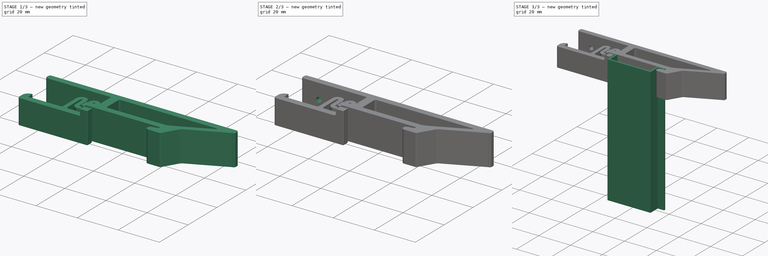
[diagram: build sequence overview — one tinted view per stage of 3, left to right]
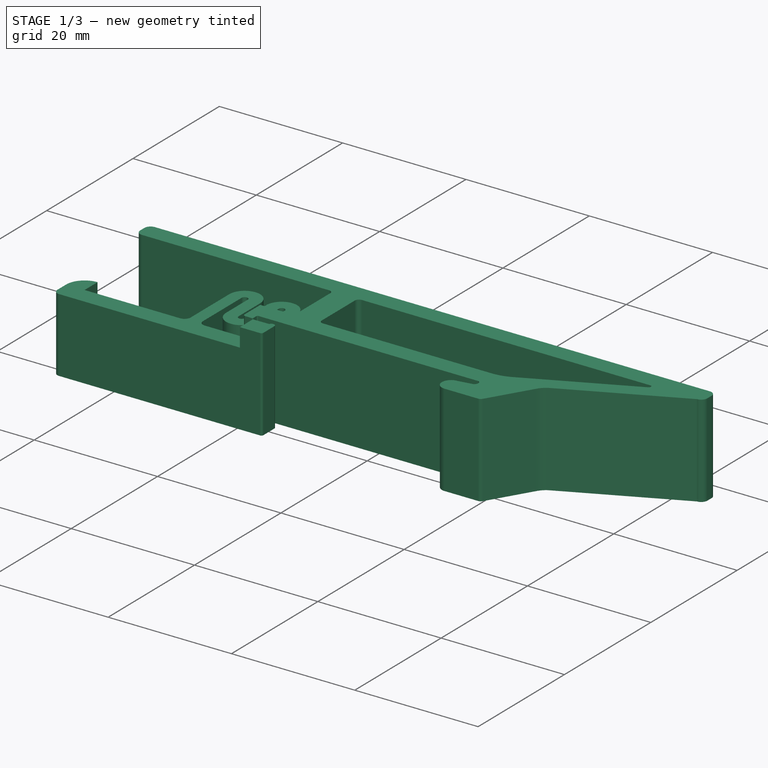
[diagram: stage 1 of 3 — iso view after this stage's code; geometry added in this stage tinted green]
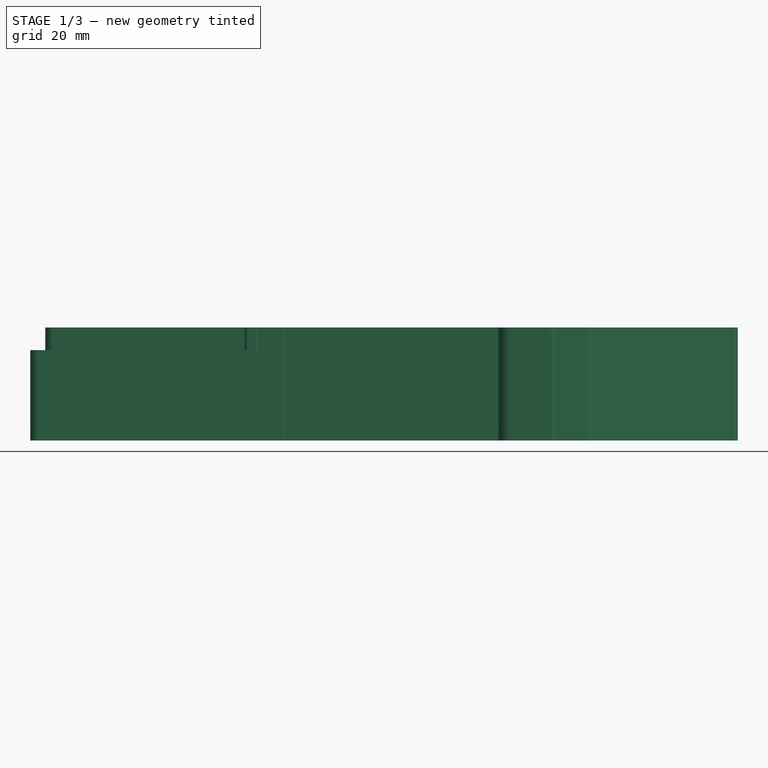
[diagram: stage 1 of 3 — front view after this stage's code; geometry added in this stage tinted green]
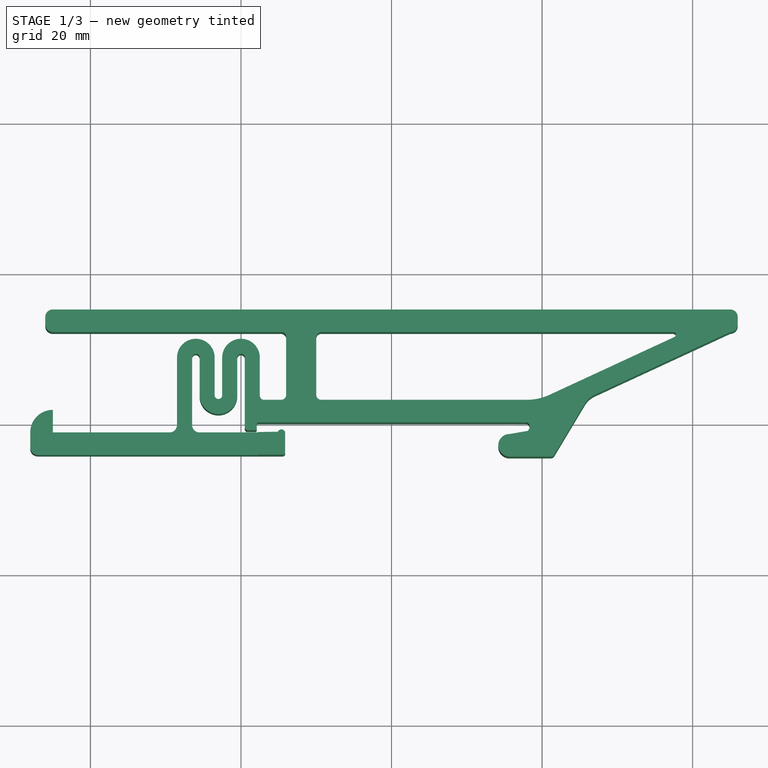
[diagram: stage 1 of 3 — top view after this stage's code; geometry added in this stage tinted green]
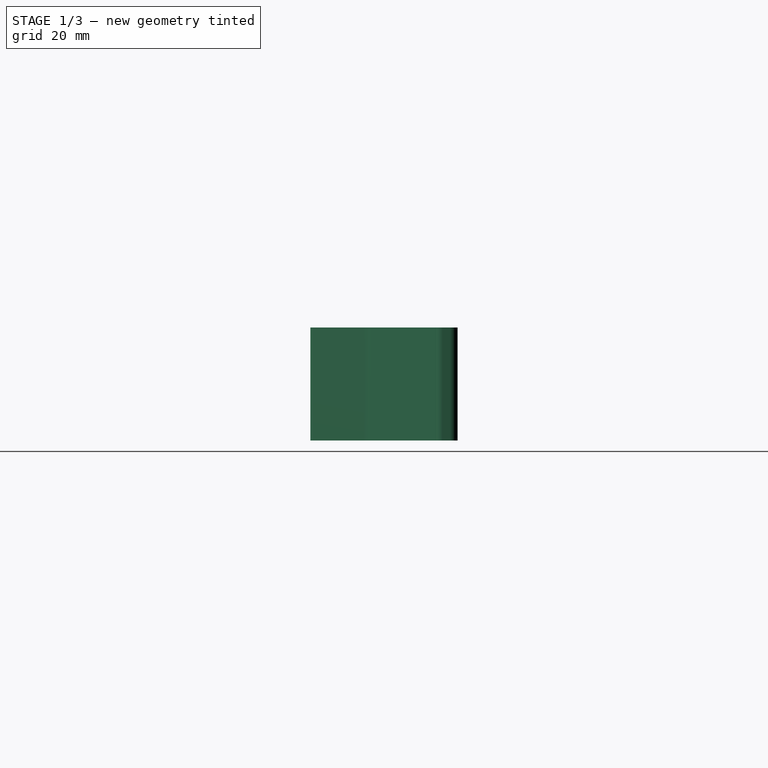
[diagram: stage 1 of 3 — right view after this stage's code; geometry added in this stage tinted green]
FCSTD DOCUMENT  (FreeCAD 1.0R39109 (Git))
Label: universal-din-clip-v3-lower
License: All rights reserved
LicenseURL: http://en.wikipedia.org/wiki/All_rights_reserved
objects: Sketcher::SketchObject×4, PartDesign::Pad×2, PartDesign::Pocket×2, PartDesign::Body×2, PartDesign::Fillet×2
note: 28 computed .brp shape members not serialized (recipe doc carries the construction recipe); baked Part::Feature solids carry a one-line shape summary decoded from their .brp

FEATURE [Sketcher::SketchObject] Sketch003  label="better"
  ArcFitTolerance = 0
  AttachmentSupport = -> [XY_Plane]
  FullyConstrained = false
  MakeInternals = false
  MapMode = 5
  sketch-geometry (72):
    g0: ArcOfCircle CenterX=17.6803 CenterY=-0.484535 CenterZ=0 NormalX=0 NormalY=0 NormalZ=1 AngleXU=0 Radius=0.664014 StartAngle=5.27486 EndAngle=7.35969
    g1: LineSegment StartX=18.0344 StartY=-1.04625 StartZ=0 EndX=15.6803 EndY=-1.44871 EndZ=0
    g2: ArcOfCircle CenterX=15.6803 CenterY=-2.94871 CenterZ=0 NormalX=0 NormalY=0 NormalZ=1 AngleXU=0 Radius=1.5 StartAngle=1.5708 EndAngle=4.71239
    g3: LineSegment StartX=-19.5 StartY=0.76 StartZ=0 EndX=-19.5 EndY=8.76 EndZ=0
    g4: ArcOfCircle CenterX=-20 CenterY=8.76 CenterZ=0 NormalX=0 NormalY=0 NormalZ=1 AngleXU=0 Radius=0.5 StartAngle=5e-16 EndAngle=3.14159
    g5: LineSegment StartX=-20.5 StartY=8.76 StartZ=0 EndX=-20.5 EndY=3.76 EndZ=0
    g6: ArcOfCircle CenterX=-23 CenterY=3.76 CenterZ=0 NormalX=0 NormalY=0 NormalZ=1 AngleXU=0 Radius=2.5 StartAngle=3.14159 EndAngle=6.28319
    g7: LineSegment StartX=-25.5 StartY=3.76 StartZ=0 EndX=-25.5 EndY=8.76 EndZ=0
    g8: ArcOfCircle CenterX=-26 CenterY=8.76 CenterZ=0 NormalX=0 NormalY=0 NormalZ=1 AngleXU=0 Radius=0.5 StartAngle=2e-16 EndAngle=3.14159
    g9: LineSegment StartX=-26.5 StartY=8.76 StartZ=0 EndX=-26.5 EndY=-0.187045 EndZ=0
    g10: LineSegment StartX=-14.66 StartY=3.1 StartZ=0 EndX=-16.84 EndY=3.1 EndZ=0
    g11: LineSegment StartX=-17.5 StartY=3.76 StartZ=0 EndX=-17.5 EndY=8.76 EndZ=0
    g12: ArcOfCircle CenterX=-20 CenterY=8.76 CenterZ=0 NormalX=0 NormalY=0 NormalZ=1 AngleXU=0 Radius=2.5 StartAngle=1e-16 EndAngle=3.14159
    g13: LineSegment StartX=-22.5 StartY=8.76 StartZ=0 EndX=-22.5 EndY=3.76 EndZ=0
    g14: ArcOfCircle CenterX=-23 CenterY=3.76 CenterZ=0 NormalX=0 NormalY=0 NormalZ=1 AngleXU=0 Radius=0.5 StartAngle=3.14159 EndAngle=6.28319
    g15: LineSegment StartX=-23.5 StartY=3.76 StartZ=0 EndX=-23.5 EndY=8.76 EndZ=0
    g16: ArcOfCircle CenterX=-26 CenterY=8.76 CenterZ=0 NormalX=0 NormalY=0 NormalZ=1 AngleXU=0 Radius=2.5 StartAngle=0 EndAngle=3.14159
    g17: LineSegment StartX=-28.5 StartY=8.76 StartZ=0 EndX=-28.5 EndY=-0.187045 EndZ=0
    g18: LineSegment [constr] StartX=-20.5 StartY=8.76 StartZ=0 EndX=-19.5 EndY=8.76 EndZ=0
    g19: LineSegment [constr] StartX=-23.5 StartY=3.76 StartZ=0 EndX=-22.5 EndY=3.76 EndZ=0
    g20: LineSegment [constr] StartX=-26.5 StartY=8.76 StartZ=0 EndX=-25.5 EndY=8.76 EndZ=0
    g21: ArcOfCircle CenterX=-25.5 CenterY=-0.187045 CenterZ=0 NormalX=0 NormalY=0 NormalZ=1 AngleXU=0 Radius=1 StartAngle=3.14159 EndAngle=4.71239
    g22: LineSegment StartX=-25.5 StartY=-1.18705 StartZ=0 EndX=-17.6337 EndY=-1.18705 EndZ=0
    g23: LineSegment StartX=15.6803 StartY=-4.44871 StartZ=0 EndX=21.1204 EndY=-4.44871 EndZ=0
    g24: LineSegment StartX=21.6441 StartY=-4.15222 StartZ=0 EndX=25.6931 EndY=2.59384 EndZ=0
    g25: LineSegment StartX=-29.5 StartY=-1.18705 StartZ=0 EndX=-45 EndY=-1.18705 EndZ=0
    g26: LineSegment StartX=-45 StartY=-1.18705 StartZ=0 EndX=-45 EndY=1.81295 EndZ=0
    g27: ArcOfCircle CenterX=-45 CenterY=-1.18705 CenterZ=0 NormalX=0 NormalY=0 NormalZ=1 AngleXU=0 Radius=3 StartAngle=1.5708 EndAngle=3.14159
    g28: LineSegment StartX=-48 StartY=-1.18705 StartZ=0 EndX=-48 EndY=-3.18705 EndZ=0
    g29: ArcOfCircle CenterX=-47 CenterY=-3.18705 CenterZ=0 NormalX=0 NormalY=0 NormalZ=1 AngleXU=0 Radius=1 StartAngle=3.14159 EndAngle=4.71239
    g30: LineSegment StartX=-47 StartY=-4.18705 StartZ=0 EndX=-17.6793 EndY=-4.18705 EndZ=0
    g31: ArcOfCircle CenterX=-16.84 CenterY=3.76 CenterZ=0 NormalX=0 NormalY=0 NormalZ=1 AngleXU=0 Radius=0.66 StartAngle=3.14159 EndAngle=4.71239
    g32: ArcOfCircle CenterX=-45 CenterY=13.1 CenterZ=0 NormalX=0 NormalY=0 NormalZ=1 AngleXU=0 Radius=1 StartAngle=3.14159 EndAngle=4.71239
    g33: LineSegment StartX=-46 StartY=13.1 StartZ=0 EndX=-46 EndY=14.1 EndZ=0
    g34: ArcOfCircle CenterX=-45 CenterY=14.1 CenterZ=0 NormalX=0 NormalY=0 NormalZ=1 AngleXU=0 Radius=1 StartAngle=1.5708 EndAngle=3.14159
    g35: LineSegment StartX=-45 StartY=15.1 StartZ=0 EndX=45 EndY=15.1 EndZ=0
    g36: ArcOfCircle CenterX=45 CenterY=14.1 CenterZ=0 NormalX=0 NormalY=0 NormalZ=1 AngleXU=0 Radius=1 StartAngle=6.28319 EndAngle=7.85398
    g37: LineSegment StartX=46 StartY=14.1 StartZ=0 EndX=46 EndY=13.1 EndZ=0
    g38: ArcOfCircle CenterX=45 CenterY=13.1 CenterZ=0 NormalX=0 NormalY=0 NormalZ=1 AngleXU=0 Radius=1 StartAngle=4.71239 EndAngle=6.28319
    g39: LineSegment StartX=26.9911 StartY=3.76 StartZ=0 EndX=45 EndY=12.1 EndZ=0
    g40: LineSegment StartX=-45 StartY=12.1 StartZ=0 EndX=-14.66 EndY=12.1 EndZ=0
    g41: LineSegment [constr] StartX=-48 StartY=-1.18705 StartZ=0 EndX=-45 EndY=-1.18705 EndZ=0
    g42: LineSegment [constr] StartX=-45 StartY=-1.18705 StartZ=0 EndX=-45 EndY=-4.18705 EndZ=0
    g43: ArcOfCircle CenterX=-29.5 CenterY=-0.187045 CenterZ=0 NormalX=0 NormalY=0 NormalZ=1 AngleXU=0 Radius=1 StartAngle=4.71239 EndAngle=6.28319
    g44: LineSegment StartX=37.5748 StartY=11.44 StartZ=0 EndX=20.9911 EndY=3.76 EndZ=0
    g45: LineSegment StartX=-14 StartY=3.76 StartZ=0 EndX=-14 EndY=11.44 EndZ=0
    g46: ArcOfCircle CenterX=-14.66 CenterY=11.44 CenterZ=0 NormalX=0 NormalY=0 NormalZ=1 AngleXU=0 Radius=0.66 StartAngle=0 EndAngle=1.5708
    g47: ArcOfCircle CenterX=-14.66 CenterY=3.76 CenterZ=0 NormalX=0 NormalY=0 NormalZ=1 AngleXU=0 Radius=0.66 StartAngle=4.71239 EndAngle=6.28319
    g48: LineSegment StartX=-10 StartY=11.44 StartZ=0 EndX=-10 EndY=3.76 EndZ=0
    g49: LineSegment StartX=-9.34 StartY=3.1 StartZ=0 EndX=17.9953 EndY=3.1 EndZ=0
    g50: LineSegment StartX=37.4294 StartY=12.1 StartZ=0 EndX=-9.34 EndY=12.1 EndZ=0
    g51: ArcOfCircle CenterX=-9.34 CenterY=11.44 CenterZ=0 NormalX=0 NormalY=0 NormalZ=1 AngleXU=0 Radius=0.66 StartAngle=1.5708 EndAngle=3.14159
    g52: ArcOfCircle CenterX=-9.34 CenterY=3.76 CenterZ=0 NormalX=0 NormalY=0 NormalZ=1 AngleXU=0 Radius=0.66 StartAngle=3.14159 EndAngle=4.71239
    g53: ArcOfCircle CenterX=37.4294 CenterY=11.754 CenterZ=0 NormalX=0 NormalY=0 NormalZ=1 AngleXU=0 Radius=0.346017 StartAngle=5.14609 EndAngle=7.85398
    g54: ArcOfCircle CenterX=28.2387 CenterY=1.066 CenterZ=0 NormalX=0 NormalY=0 NormalZ=1 AngleXU=0 Radius=2.96886 StartAngle=2.00449 EndAngle=2.60103
    g55: ArcOfCircle CenterX=17.9953 CenterY=10.2288 CenterZ=0 NormalX=0 NormalY=0 NormalZ=1 AngleXU=0 Radius=7.12883 StartAngle=4.71239 EndAngle=5.14609
    g56: LineSegment [constr] StartX=-60.1341 StartY=13.6 StartZ=0 EndX=60.1968 EndY=13.6 EndZ=0
    g57: LineSegment [constr] StartX=-29.5 StartY=6.26 StartZ=0 EndX=-10 EndY=6.26 EndZ=0
    g58: ArcOfCircle CenterX=21.1204 CenterY=-3.83785 CenterZ=0 NormalX=0 NormalY=0 NormalZ=1 AngleXU=0 Radius=0.610858 StartAngle=4.71239 EndAngle=5.74262
    g59: LineSegment StartX=-14.1281 StartY=-1.32878 StartZ=0 EndX=-14.1281 EndY=-3.86705 EndZ=0
    g60: LineSegment StartX=-17.6793 StartY=-4.18705 StartZ=0 EndX=-14.4481 EndY=-4.18705 EndZ=0
    g61: ArcOfCircle CenterX=-14.4481 CenterY=-3.86705 CenterZ=0 NormalX=0 NormalY=0 NormalZ=1 AngleXU=0 Radius=0.32 StartAngle=4.71239 EndAngle=6.28319
    g62: LineSegment StartX=-17.9019 StartY=-0.077199 StartZ=0 EndX=-17.9019 EndY=-0.769129 EndZ=0
    g63: LineSegment StartX=-18.0791 StartY=-0.946328 StartZ=0 EndX=-19.1192 EndY=-0.946328 EndZ=0
    g64: LineSegment StartX=-19.5 StartY=-0.565486 StartZ=0 EndX=-19.5 EndY=0.1 EndZ=0
    g65: LineSegment StartX=-17.7247 StartY=0.1 StartZ=0 EndX=17.9953 EndY=0.1 EndZ=0
    g66: ArcOfCircle CenterX=-18.0791 CenterY=-0.769129 CenterZ=0 NormalX=0 NormalY=0 NormalZ=1 AngleXU=0 Radius=0.177199 StartAngle=4.71239 EndAngle=6.28319
    g67: ArcOfCircle CenterX=-19.1192 CenterY=-0.565486 CenterZ=0 NormalX=0 NormalY=0 NormalZ=1 AngleXU=0 Radius=0.380842 StartAngle=3.14159 EndAngle=4.71239
    g68: ArcOfCircle CenterX=-17.7247 CenterY=-0.077199 CenterZ=0 NormalX=0 NormalY=0 NormalZ=1 AngleXU=0 Radius=0.177199 StartAngle=1.5708 EndAngle=3.14159
    g69: LineSegment StartX=-19.5 StartY=0.76 StartZ=0 EndX=-19.5 EndY=0.1 EndZ=0
    g70: ArcOfCircle CenterX=-14.6281 CenterY=-1.32878 CenterZ=0 NormalX=0 NormalY=0 NormalZ=1 AngleXU=0 Radius=0.5 StartAngle=0 EndAngle=2.75932
    g71: LineSegment StartX=-15.092 StartY=-1.14226 StartZ=0 EndX=-17.6337 EndY=-1.18705 EndZ=0
  constraints (168):
    c: Coincident(g1,g0)
    c: Vertical(g2,g2)
    c: Vertical(g2,g2)
    c: Coincident(g1,g2)
    c: Tangent(g3,g4) = -1.5708
    c: Coincident(g4,g5)
    c: Tangent(g5,g6) = 1.5708
    c: Tangent(g7,g8) = -1.5708
    c: Tangent(g8,g9) = -1.5708
    c: Horizontal(g10)
    c: Vertical(g11)
    c: Tangent(g11,g12) = -1.5708
    c: Tangent(g12,g13) = -1.5708
    c: DistanceX(g3,g11) = 2
    c: Vertical(g3)
    c: Symmetric(g12,g11,g4)
    c: DistanceX(g4,g3) = 1
    c: Tangent(g13,g14) = 1.5708
    c: Coincident(g14,g15)
    c: Coincident(g6,g7)
    c: Tangent(g15,g16) = -1.5708
    c: Coincident(g16,g17)
    c: Vertical(g17)
    c: Horizontal(g6,g5)
    c: Coincident(g6,g14)
    c: Coincident(g8,g16)
    c: Coincident(g18,g4)
    c: Coincident(g18,g3)
    c: Coincident(g19,g14)
    c: Coincident(g19,g13)
    c: Equal(g19,g18)
    c: Coincident(g20,g8)
    c: Coincident(g20,g7)
    c: Equal(g20,g18)
    c: Tangent(g9,g21) = -1.5708
    c: Coincident(g21,g22)
    c: Horizontal(g22)
    c: Tangent(g2,g23) = -1.5708
    c: Horizontal(g25)
    c: Coincident(g25,g26)
    c: Coincident(g27,g28)
    c: Vertical(g28)
    c: Tangent(g28,g29) = -1.5708
    c: Tangent(g29,g30) = -1.5708
    c: Tangent(g11,g31) = 1.5708
    c: Tangent(g10,g31) = 1.5708
    c: DistanceX(g40,g38) = 90
    c: Coincident(g40,g32) = -1.5708
    c: Coincident(g32,g33)
    c: Vertical(g33)
    c: Tangent(g33,g34) = 1.5708
    c: Coincident(g34,g35)
    c: Tangent(g35,g36) = 1.5708
    c: Coincident(g36,g37)
    c: Tangent(g37,g38) = 1.5708
    c: Horizontal(g40)
    c: DistanceY(g32,g34) = 3  'bed-width'
    c: Coincident(g41,g27)
    c: Coincident(g41,g25)
    c: Horizontal(g41)
    c: Coincident(g27,g25)
    c: Coincident(g42,g25)
    c: PointOnObject(g42,g30)
    c: Vertical(g42)
    c: Perpendicular(g30,g42)
    c: Equal(g42,g41)
    c: Radius(g29) = 1
    c: Coincident(g27,g26)
    c: Perpendicular(g25,g26)
    c: DistanceY(g25,g26) = 3  'notch-height'
    c: Equal(g21,g29)
    c: Tangent(g17,g43) = 1.5708
    c: Tangent(g25,g43) = 1.5708
    c: Equal(g43,g21)
    c: Vertical(g45)
    c: Tangent(g40,g46) = 1.5708
    c: Tangent(g45,g46) = -1.5708
    c: Tangent(g45,g47) = -1.5708
    c: Tangent(g10,g47) = 1.5708
    c: Vertical(g48)
    c: Horizontal(g49)
    c: Horizontal(g50)
    c: Tangent(g48,g51) = -1.5708
    c: Tangent(g50,g51) = -1.5708
    c: Tangent(g48,g52) = -1.5708
    c: Tangent(g49,g52) = -1.5708
    c: Tangent(g50,g53) = -1.5708
    c: Tangent(g44,g53) = 1.5708
    c: Tangent(g24,g54) = 1.5708
    c: Tangent(g39,g54) = 1.5708
    c: Tangent(g49,g55) = -1.5708
    c: Tangent(g44,g55) = 1.5708
    c: Horizontal(g40,g50)
    c: Parallel(g44,g39)
    c: Equal(g13,g11)
    c: Horizontal(g10,g49)
    c: Equal(g34,g32)
    c: DistanceX(g45,g48) = 4
    c: Horizontal(g44,g39)
    c: DistanceX(g44,g39) = 6
    c: Coincident(g38,g39)
    c: Radius(g36) = 1
    c: Radius(g34) = 1
    c: Symmetric(g34,g32,g56)
    c: Symmetric(g33,g32,g56)
    c: Symmetric(g35,g38,g56)
    c: Symmetric(g36,g37,g56)
    c: Vertical(g34,g34)
    c: Horizontal(g48,g44)
    c: Horizontal(g45,g48)
    c: Horizontal(g11,g45)
    c: Horizontal(g45,g48)
    c: Horizontal(g48,g44)
    c: Vertical(g9)
    c: Horizontal(g25,g21)
    c: Vertical(g26,g32)
    c: Symmetric(g34,g35,g-2)
    c: DistanceY(g49,g50) = 9
    c: Equal(g52,g51)
    c: DistanceY(g0,g49) = 3
    c: DistanceY(g2,g1) = 3
    c: DistanceY(g64,g34) = 15
    c: DistanceY(g-1,g64) = 0.1
    c: Radius(g52) = 0.66
    c: DistanceX(g48,g-1) = 10
    c: Vertical(g0,g49)
    c: Symmetric(g7,g6,g57)
    c: Symmetric(g4,g5,g57)
    c: Symmetric(g13,g12,g57)
    c: Symmetric(g15,g14,g57)
    c: Horizontal(g57)
    c: DistanceX(g16,g8) = 2
    c: DistanceY(g6,g7) = 5
    c: DistanceX(g35,g36) = 1
    c: Tangent(g24,g58) = -1.5708
    c: Tangent(g23,g58) = -1.5708
    c: DistanceX(g2,g0) = 2
    c: Vertical(g59)
    c: Coincident(g60,g30)
    c: Horizontal(g60)
    c: Tangent(g59,g61) = 1.5708
    c: Tangent(g60,g61) = -1.5708
    c: Horizontal(g17,g9)
    c: Vertical(g57,g25)
    c: Vertical(g57,g48)
    c: Radius(g61) = 0.32
    c: Vertical(g62)
    c: Horizontal(g63)
    c: Vertical(g64)
    c: Coincident(g65,g0)
    c: Horizontal(g65)
    c: Tangent(g62,g66) = 1.5708
    c: Tangent(g63,g66) = 1.5708
    c: Tangent(g63,g67) = 1.5708
    c: Tangent(g64,g67) = 1.5708
    c: Tangent(g62,g68) = -1.5708
    c: Tangent(g65,g68) = 1.5708
    c: Coincident(g3,g69)
    c: Coincident(g69,g64)
    c: Vertical(g69)
    c: Equal(g68,g66)
    c: DistanceX(g65,g0) = 35.72
    c: Horizontal(g65,g64)
    c: DistanceX(g11,g45) = 3.5
    c: Tangent(g59,g70) = 1.5708
    c: Coincident(g70,g71)
    c: Coincident(g22,g71)
    c: Radius(g70) = 0.5
FEATURE [PartDesign::Pad] Pad
  Direction = (0,0,1)
  Length = 15
  Length2 = 10
  Profile = -> Sketch003
  ReferenceAxis = -> Sketch003 [N_Axis]
  Refine = true
  Reversed = true
  Suppressed = false
  Type = 0
FEATURE [Sketcher::SketchObject] Sketch005  label="thinner"
  ArcFitTolerance = 0
  AttachmentSupport = -> [XY_Plane]
  ExternalGeometry = -> [Sketch003]
  FullyConstrained = false
  MakeInternals = false
  MapMode = 5
  sketch-geometry (8):
    g0: LineSegment StartX=-14.66 StartY=11.6367 StartZ=0 EndX=-49.2427 EndY=11.6367 EndZ=0
    g1: LineSegment StartX=-49.2427 StartY=11.6367 StartZ=0 EndX=-49.2427 EndY=-9.37253 EndZ=0
    g2: LineSegment StartX=-49.2427 StartY=-9.37253 StartZ=0 EndX=-17.7107 EndY=-9.37253 EndZ=0
    g3: LineSegment StartX=-17.7107 StartY=-1.14407 StartZ=0 EndX=-17.7107 EndY=-9.37253 EndZ=0
    g4: LineSegment StartX=-17.7107 StartY=-1.14407 StartZ=0 EndX=-19.9485 EndY=-1.14407 EndZ=0
    g5: LineSegment StartX=-19.9485 StartY=-1.14407 StartZ=0 EndX=-19.9485 EndY=3.1 EndZ=0
    g6: LineSegment StartX=-19.9485 StartY=3.1 StartZ=0 EndX=-14.66 EndY=3.1 EndZ=0
    g7: LineSegment StartX=-14.66 StartY=3.1 StartZ=0 EndX=-14.66 EndY=11.6367 EndZ=0
  constraints (18):
    c: Horizontal(g0)
    c: Coincident(g1,g0)
    c: Vertical(g1)
    c: Coincident(g2,g1)
    c: Coincident(g2,g3)
    c: Horizontal(g2)
    c: Vertical(g3)
    c: Horizontal(g4)
    c: Coincident(g4,g5)
    c: Vertical(g5)
    c: Coincident(g5,g6)
    c: Horizontal(g6)
    c: Coincident(g6,g7)
    c: Coincident(g7,g0)
    c: Vertical(g7)
    c: PointOnObject(g6,g-3)
    c: Coincident(g3,g4)
    c: PointOnObject(g-4,g6)
FEATURE [PartDesign::Pocket] Pocket
  BaseFeature = -> Pad
  Direction = (0,0,-1)
  Length = 3
  Length2 = 5
  Profile = -> Sketch005
  ReferenceAxis = -> Sketch005 [N_Axis]
  Refine = true
  Suppressed = false
  Type = 0
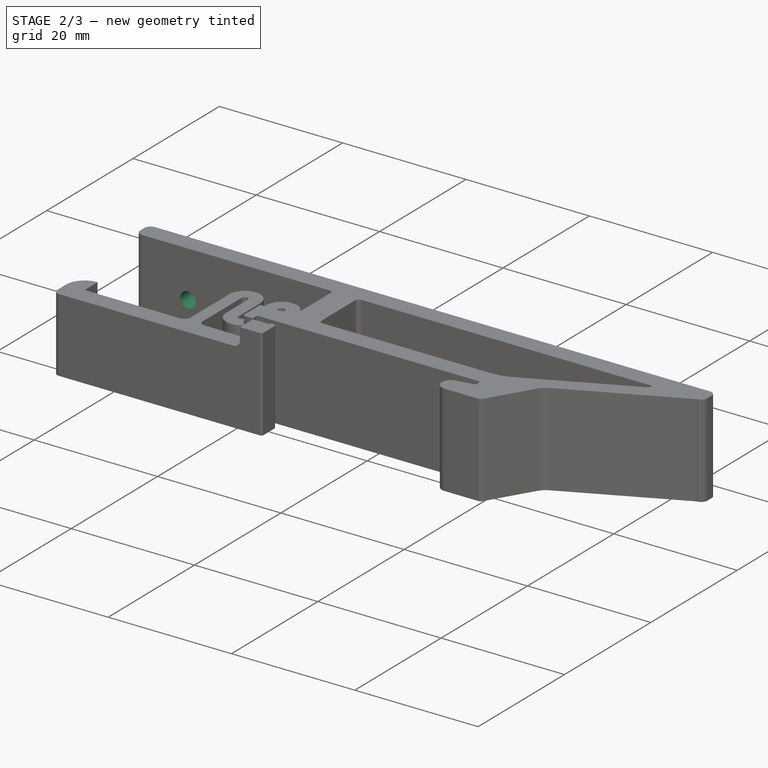
[diagram: stage 2 of 3 — iso view after this stage's code; geometry added in this stage tinted green]
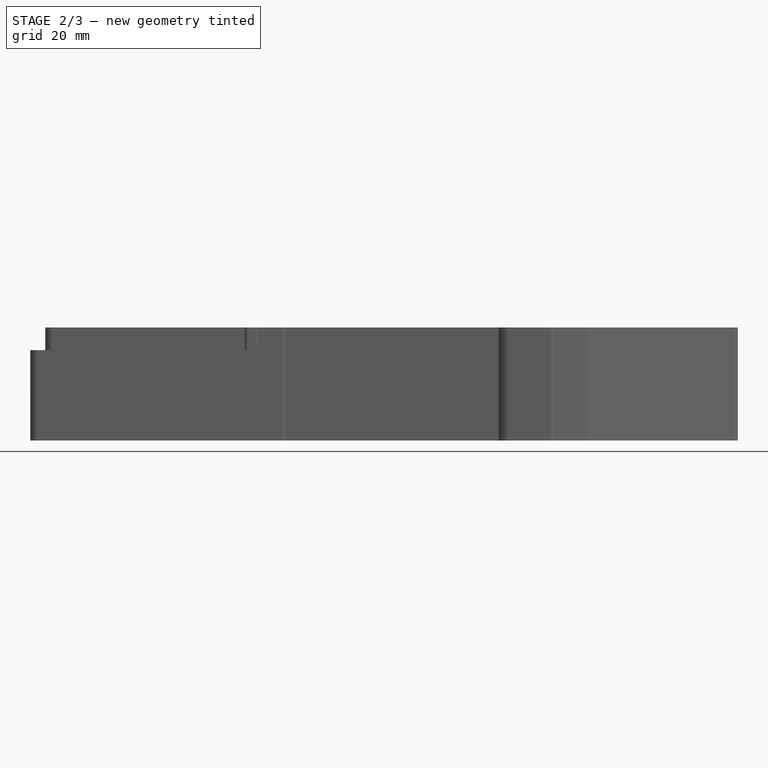
[diagram: stage 2 of 3 — front view after this stage's code; geometry added in this stage tinted green]
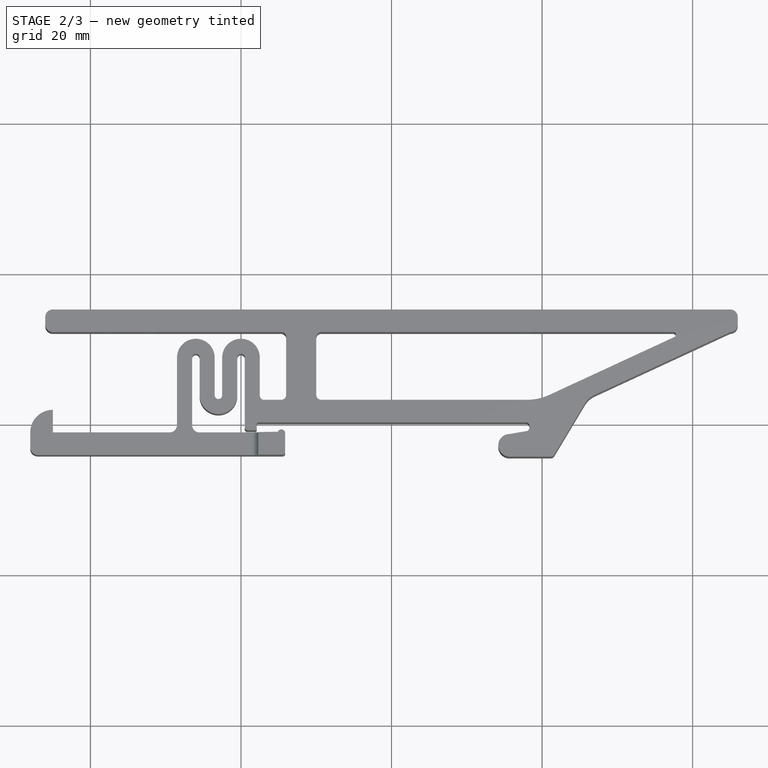
[diagram: stage 2 of 3 — top view after this stage's code; geometry added in this stage tinted green]
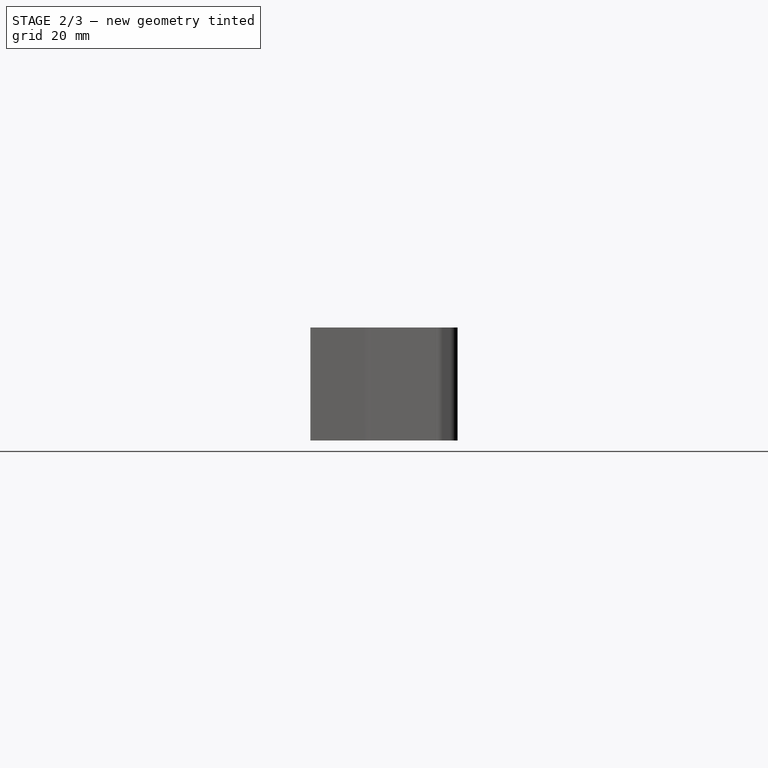
[diagram: stage 2 of 3 — right view after this stage's code; geometry added in this stage tinted green]
FEATURE [PartDesign::Body] Body001  label="th-rail"
  AllowCompound = false
  Group = -> [Sketch006,Pad001]
  Origin = -> Origin001
  Placement = pos=(0,0,20) rot=(0,0,1;0rad)
  Tip = -> Pad001
FEATURE [Sketcher::SketchObject] Sketch
  ArcFitTolerance = 0
  AttachmentSupport = -> [Pocket]
  ExternalGeometry = -> [Pocket]
  FullyConstrained = false
  MakeInternals = false
  MapMode = 5
  Placement = pos=(0,15.1,0) rot=(0,0.707107,0.707107;3.14159rad)
  sketch-geometry (6):
    g0: LineSegment [constr] StartX=-52.0695 StartY=-7.5 StartZ=0 EndX=77.0695 EndY=-7.5 EndZ=0
    g1: Circle CenterX=-37.5 CenterY=-7.5 CenterZ=0 NormalX=0 NormalY=0 NormalZ=1 AngleXU=0 Radius=1.25
    g2: Circle CenterX=37.5 CenterY=-7.5 CenterZ=0 NormalX=0 NormalY=0 NormalZ=1 AngleXU=0 Radius=1.25
    g3: Circle CenterX=32 CenterY=-7.5 CenterZ=0 NormalX=0 NormalY=0 NormalZ=1 AngleXU=0 Radius=1.25
    g4: Circle CenterX=-18 CenterY=-7.5 CenterZ=0 NormalX=0 NormalY=0 NormalZ=1 AngleXU=0 Radius=1.25
    g5: Circle CenterX=12.5 CenterY=-7.5 CenterZ=0 NormalX=0 NormalY=0 NormalZ=1 AngleXU=0 Radius=1.25
  constraints (14):
    c: Symmetric(g-3,g-4,g0)
    c: PointOnObject(g1,g0)
    c: Equal(g2,g1)
    c: DistanceX(g1,g2) = 75
    c: Symmetric(g1,g2,g-2)
    c: PointOnObject(g3,g0)
    c: Equal(g1,g4)
    c: Equal(g3,g2)
    c: DistanceX(g4,g3) = 50
    c: Diameter(g2) = 2.5
    c: Distance(g4,g-2) = 18
    c: Symmetric(g0,g0,g5)
    c: Equal(g5,g2)
    c: DistanceX(g1,g5) = 50
FEATURE [PartDesign::Pocket] Pocket001
  BaseFeature = -> Pocket
  Direction = (0,-1,2e-16)
  Length = 3
  Length2 = 5
  Profile = -> Sketch
  ReferenceAxis = -> Sketch [N_Axis]
  Refine = true
  Suppressed = false
  Type = 0
FEATURE [PartDesign::Fillet] Fillet
  Base = -> Pocket001 [Edge206]
  BaseFeature = -> Pocket001
  Radius = 1
  Refine = true
  SupportTransform = false
  Suppressed = false
  UseAllEdges = false
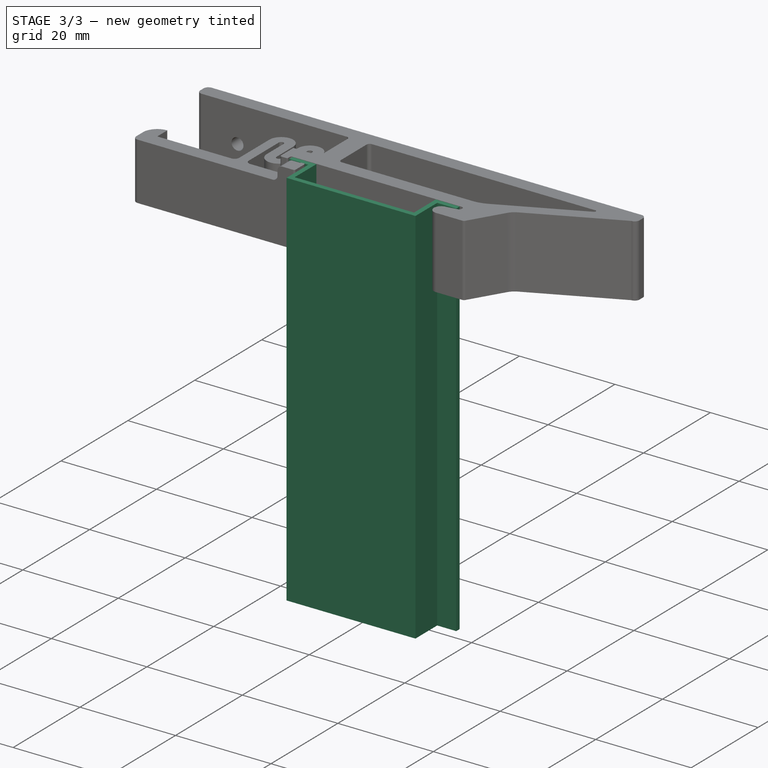
[diagram: stage 3 of 3 — iso view after this stage's code; geometry added in this stage tinted green]
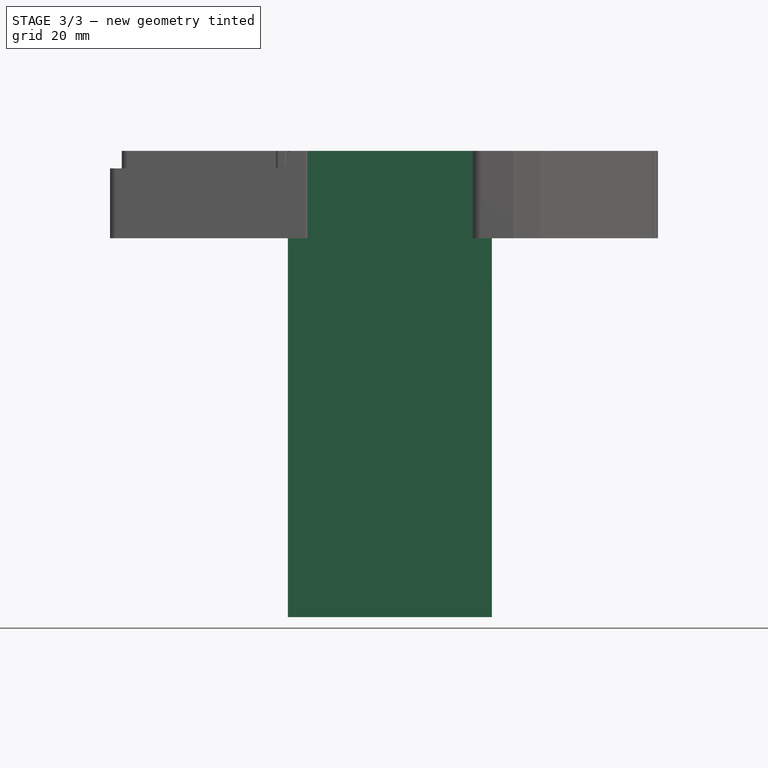
[diagram: stage 3 of 3 — front view after this stage's code; geometry added in this stage tinted green]
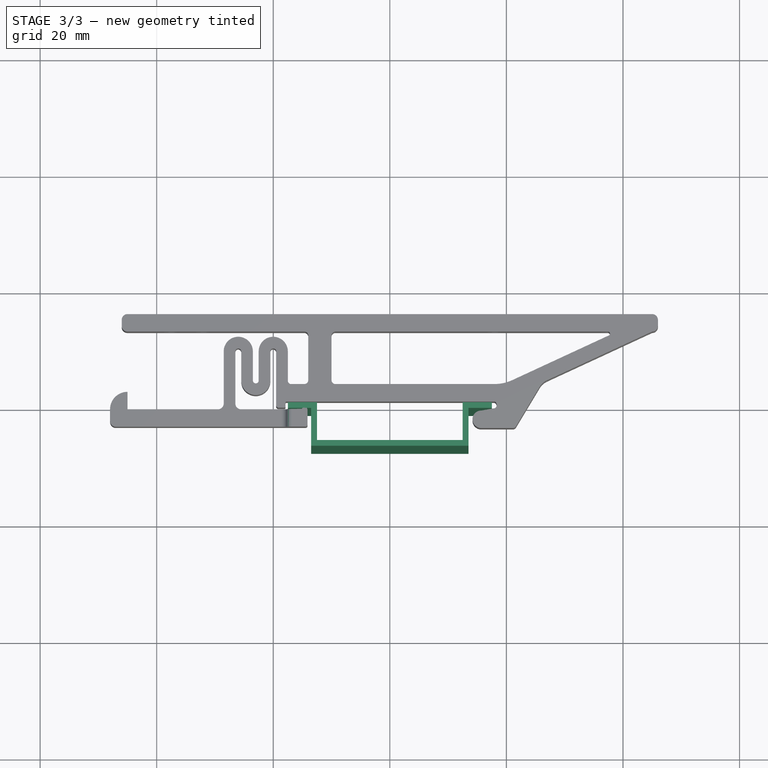
[diagram: stage 3 of 3 — top view after this stage's code; geometry added in this stage tinted green]
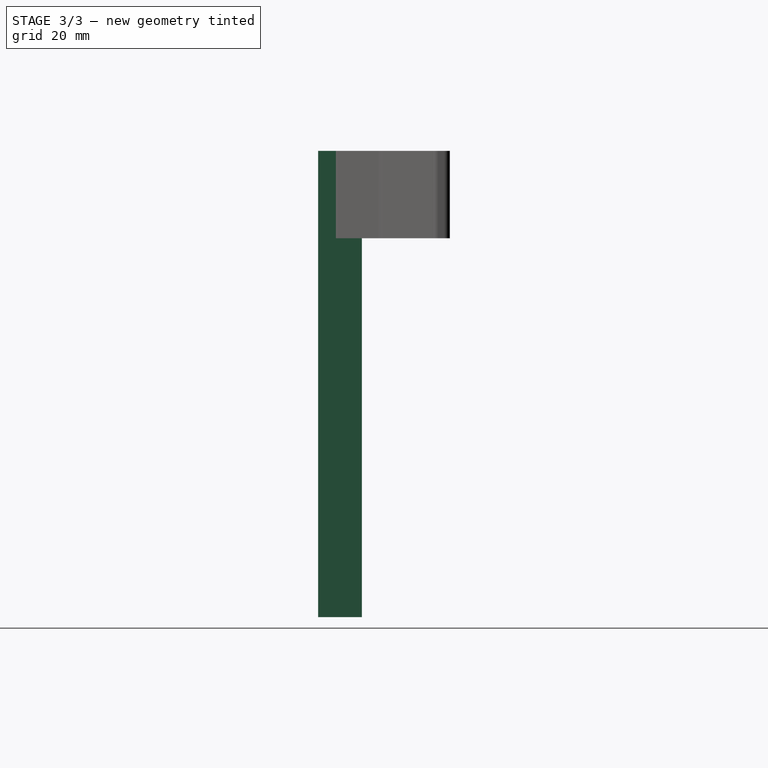
[diagram: stage 3 of 3 — right view after this stage's code; geometry added in this stage tinted green]
FEATURE [Sketcher::SketchObject] Sketch006  label="th35-base001"
  ArcFitTolerance = 0
  AttachmentSupport = -> [XY_Plane002]
  FullyConstrained = true
  MakeInternals = false
  MapMode = 5
  sketch-geometry (12):
    g0: LineSegment StartX=-17.5 StartY=0 StartZ=0 EndX=-12.5 EndY=0 EndZ=0
    g1: LineSegment StartX=-12.5 StartY=0 StartZ=0 EndX=-12.5 EndY=-6.5 EndZ=0
    g2: LineSegment StartX=-12.5 StartY=-6.5 StartZ=0 EndX=12.5 EndY=-6.5 EndZ=0
    g3: LineSegment StartX=12.5 StartY=-6.5 StartZ=0 EndX=12.5 EndY=0 EndZ=0
    g4: LineSegment StartX=12.5 StartY=0 StartZ=0 EndX=17.5 EndY=0 EndZ=0
    g5: LineSegment StartX=17.5 StartY=0 StartZ=0 EndX=17.5 EndY=-1 EndZ=0
    g6: LineSegment StartX=17.5 StartY=-1 StartZ=0 EndX=13.5 EndY=-1 EndZ=0
    g7: LineSegment StartX=13.5 StartY=-1 StartZ=0 EndX=13.5 EndY=-7.5 EndZ=0
    g8: LineSegment StartX=13.5 StartY=-7.5 StartZ=0 EndX=-13.5 EndY=-7.5 EndZ=0
    g9: LineSegment StartX=-13.5 StartY=-7.5 StartZ=0 EndX=-13.5 EndY=-1 EndZ=0
    g10: LineSegment StartX=-13.5 StartY=-1 StartZ=0 EndX=-17.5 EndY=-1 EndZ=0
    g11: LineSegment StartX=-17.5 StartY=0 StartZ=0 EndX=-17.5 EndY=-1 EndZ=0
  constraints (32):
    c: PointOnObject(g0,g-1)
    c: PointOnObject(g0,g-1)
    c: Coincident(g0,g1)
    c: Vertical(g1)
    c: Coincident(g1,g2)
    c: Coincident(g2,g3)
    c: Coincident(g3,g4)
    c: Coincident(g4,g5)
    c: Vertical(g5)
    c: Coincident(g5,g6)
    c: Horizontal(g6)
    c: Coincident(g6,g7)
    c: Vertical(g7)
    c: Coincident(g7,g8)
    c: Coincident(g8,g9)
    c: Coincident(g9,g10)
    c: Horizontal(g10)
    c: Symmetric(g3,g0,g-2)
    c: Symmetric(g9,g6,g-2)
    c: Symmetric(g1,g2,g-2)
    c: Symmetric(g8,g7,g-2)
    c: Coincident(g11,g0)
    c: Coincident(g11,g10)
    c: Vertical(g11)
    c: DistanceY(g5,g4) = 1
    c: DistanceX(g3,g4) = 5
    c: DistanceX(g0,g4) = 35
    c: DistanceX(g9,g0) = 1
    c: DistanceY(g7,g2) = 1
    c: DistanceY(g8,g0) = 7.5
    c: Symmetric(g0,g4,g-2)
    c: DistanceX(g0,g3) = 25
FEATURE [PartDesign::Pad] Pad001
  Direction = (0,0,1)
  Length = 80
  Length2 = 10
  Profile = -> Sketch006
  ReferenceAxis = -> Sketch006 [N_Axis]
  Refine = true
  Reversed = true
  Suppressed = false
  Type = 0
FEATURE [PartDesign::Fillet] Fillet001
  Base = -> Fillet [Edge38]
  BaseFeature = -> Fillet
  Radius = 1
  Refine = true
  SupportTransform = false
  Suppressed = false
  UseAllEdges = false
FEATURE [PartDesign::Body] Body  label="clip"
  AllowCompound = false
  Group = -> [Sketch003,Pad,Sketch005,Pocket,Sketch,Pocket001,Fillet,Fillet001]
  Origin = -> Origin
  Tip = -> Fillet001
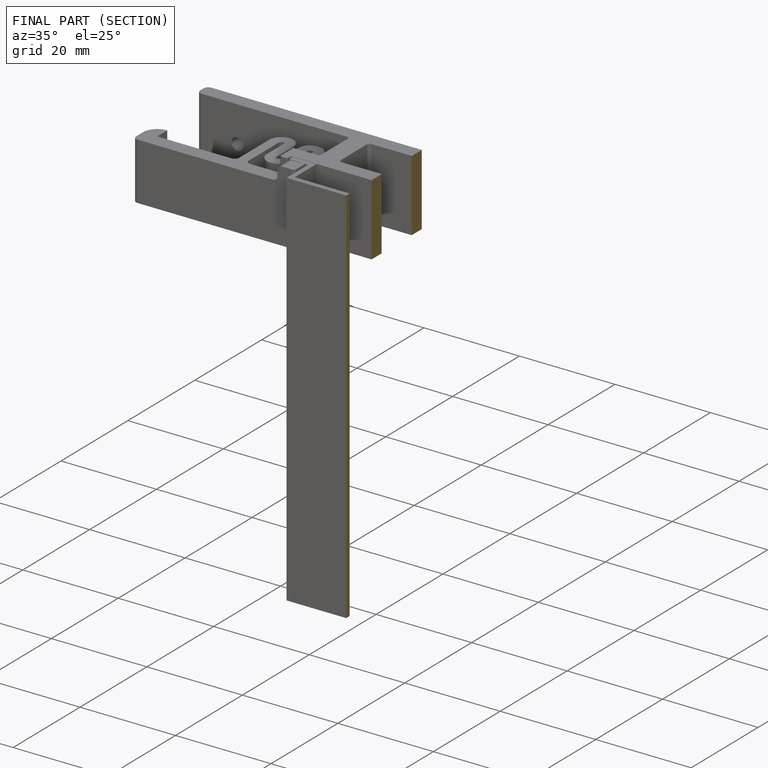
[diagram: finished part — half-section view (interior)]
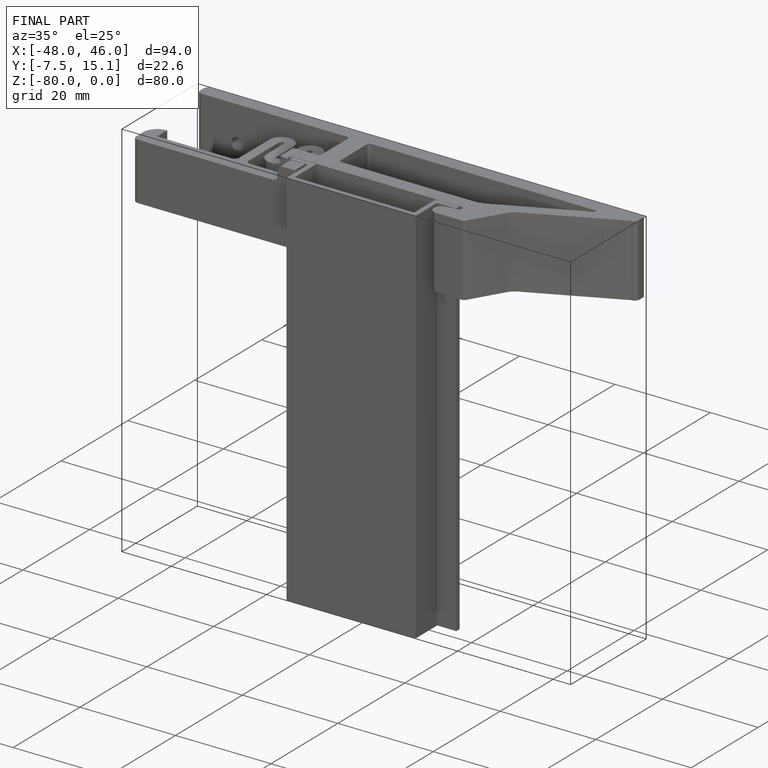
[diagram: finished part — iso view with bounding-box wireframe]
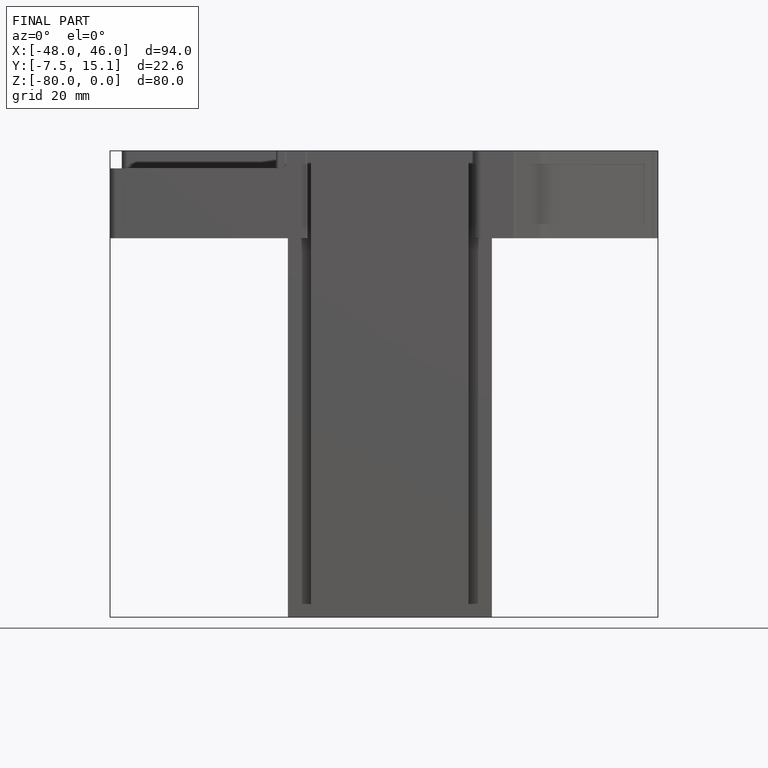
[diagram: finished part — front view with bounding-box wireframe]
